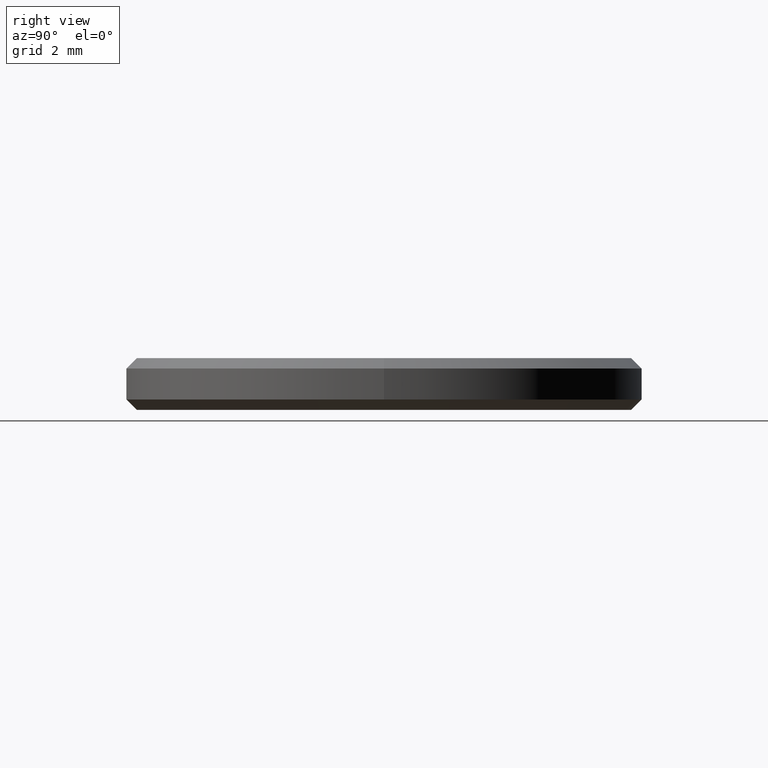
[diagram: clean part render]
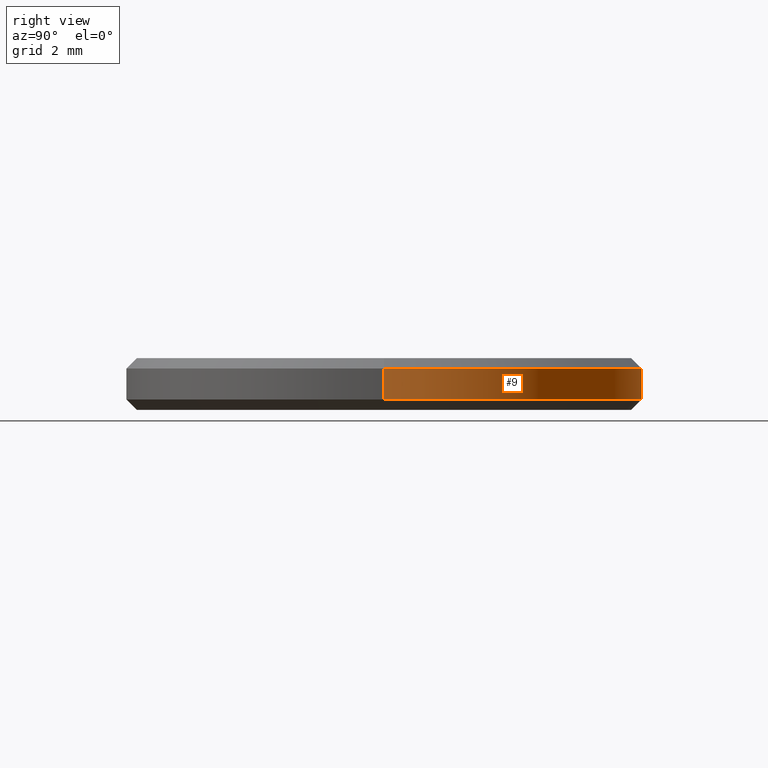
[diagram: same view with one face highlighted and labeled with its STEP entity id]
A machine part, right view. The second image highlights one B-rep face of the part: STEP entity #9.
In plain terms, the highlighted cylindrical surface (partial cylindrical patch) has radius 5 mm, axis along (-0, -0, -1).
Its self-contained STEP definition (entity closure, byte-faithful):
#9 = ADVANCED_FACE ( 'NONE', ( #192 ), #177, .T. ) ;
#13 = DIRECTION ( 'NONE',  ( 0.000000000000000000, 0.000000000000000000, -1.000000000000000000 ) ) ;
#18 = VECTOR ( 'NONE', #201, 1000.000000000000000 ) ;
#26 = VERTEX_POINT ( 'NONE', #173 ) ;
#38 = DIRECTION ( 'NONE',  ( -0.000000000000000000, -0.000000000000000000, 1.000000000000000000 ) ) ;
#44 = EDGE_CURVE ( 'NONE', #26, #122, #171, .T. ) ;
#46 = EDGE_LOOP ( 'NONE', ( #227, #209, #137, #49 ) ) ;
#48 = VERTEX_POINT ( 'NONE', #198 ) ;
#49 = ORIENTED_EDGE ( 'NONE', *, *, #222, .F. ) ;
#53 = DIRECTION ( 'NONE',  ( 1.000000000000000000, 0.000000000000000000, 0.000000000000000000 ) ) ;
#57 = CARTESIAN_POINT ( 'NONE',  ( 5.000000000000000000, 6.123233995736766282E-16, 1.000000000000000000 ) ) ;
#64 = CIRCLE ( 'NONE', #194, 5.000000000000000000 ) ;
#77 = CARTESIAN_POINT ( 'NONE',  ( 0.000000000000000000, 0.000000000000000000, 0.1999999999999996503 ) ) ;
#86 = DIRECTION ( 'NONE',  ( 1.000000000000000000, 0.000000000000000000, 0.000000000000000000 ) ) ;
#110 = AXIS2_PLACEMENT_3D ( 'NONE', #138, #13, #86 ) ;
#122 = VERTEX_POINT ( 'NONE', #126 ) ;
#126 = CARTESIAN_POINT ( 'NONE',  ( 5.000000000000000000, 6.123233995736766282E-16, 0.8000000000000012657 ) ) ;
#128 = DIRECTION ( 'NONE',  ( -0.000000000000000000, -0.000000000000000000, -1.000000000000000000 ) ) ;
#133 = CARTESIAN_POINT ( 'NONE',  ( -5.000000000000000000, 0.000000000000000000, 1.000000000000000000 ) ) ;
#136 = DIRECTION ( 'NONE',  ( -1.000000000000000000, 0.000000000000000000, 0.000000000000000000 ) ) ;
#137 = ORIENTED_EDGE ( 'NONE', *, *, #141, .T. ) ;
#138 = CARTESIAN_POINT ( 'NONE',  ( 0.000000000000000000, 0.000000000000000000, 0.8000000000000012657 ) ) ;
#141 = EDGE_CURVE ( 'NONE', #156, #48, #64, .T. ) ;
#147 = VECTOR ( 'NONE', #128, 1000.000000000000000 ) ;
#150 = LINE ( 'NONE', #133, #18 ) ;
#156 = VERTEX_POINT ( 'NONE', #165 ) ;
#160 = DIRECTION ( 'NONE',  ( -0.000000000000000000, -0.000000000000000000, -1.000000000000000000 ) ) ;
#165 = CARTESIAN_POINT ( 'NONE',  ( 5.000000000000000000, 6.123233995736766282E-16, 0.1999999999999996503 ) ) ;
#171 = CIRCLE ( 'NONE', #110, 5.000000000000000000 ) ;
#173 = CARTESIAN_POINT ( 'NONE',  ( -5.000000000000000000, 0.000000000000000000, 0.8000000000000012657 ) ) ;
#177 = CYLINDRICAL_SURFACE ( 'NONE', #210, 5.000000000000000000 ) ;
#192 = FACE_OUTER_BOUND ( 'NONE', #46, .T. ) ;
#194 = AXIS2_PLACEMENT_3D ( 'NONE', #77, #38, #53 ) ;
#195 = EDGE_CURVE ( 'NONE', #122, #156, #240, .T. ) ;
#198 = CARTESIAN_POINT ( 'NONE',  ( -5.000000000000000000, 0.000000000000000000, 0.1999999999999996503 ) ) ;
#201 = DIRECTION ( 'NONE',  ( -0.000000000000000000, -0.000000000000000000, -1.000000000000000000 ) ) ;
#209 = ORIENTED_EDGE ( 'NONE', *, *, #195, .T. ) ;
#210 = AXIS2_PLACEMENT_3D ( 'NONE', #226, #160, #136 ) ;
#222 = EDGE_CURVE ( 'NONE', #26, #48, #150, .T. ) ;
#226 = CARTESIAN_POINT ( 'NONE',  ( 0.000000000000000000, 0.000000000000000000, 1.000000000000000000 ) ) ;
#227 = ORIENTED_EDGE ( 'NONE', *, *, #44, .T. ) ;
#240 = LINE ( 'NONE', #57, #147 ) ;